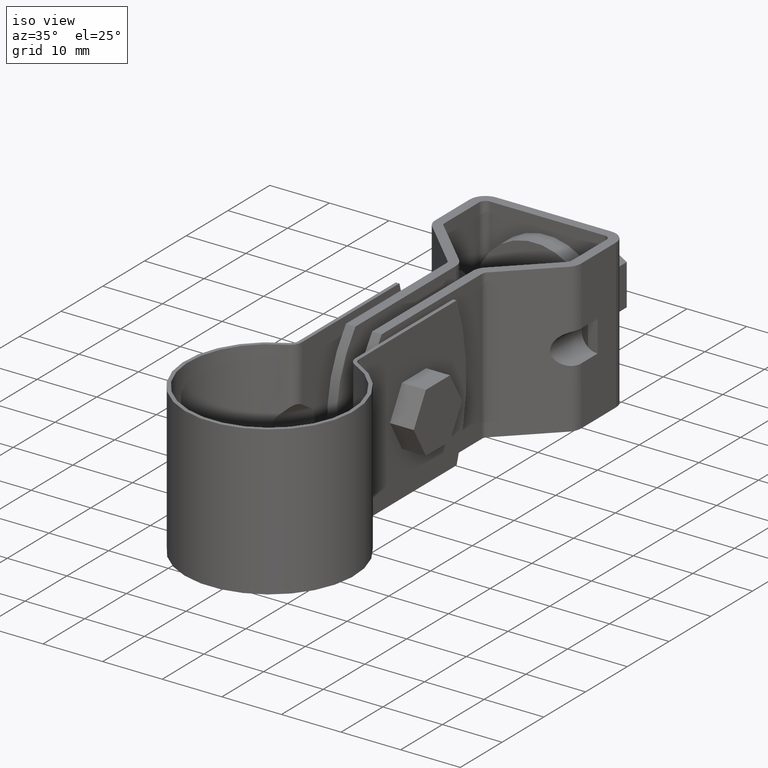
[diagram: clean part render]
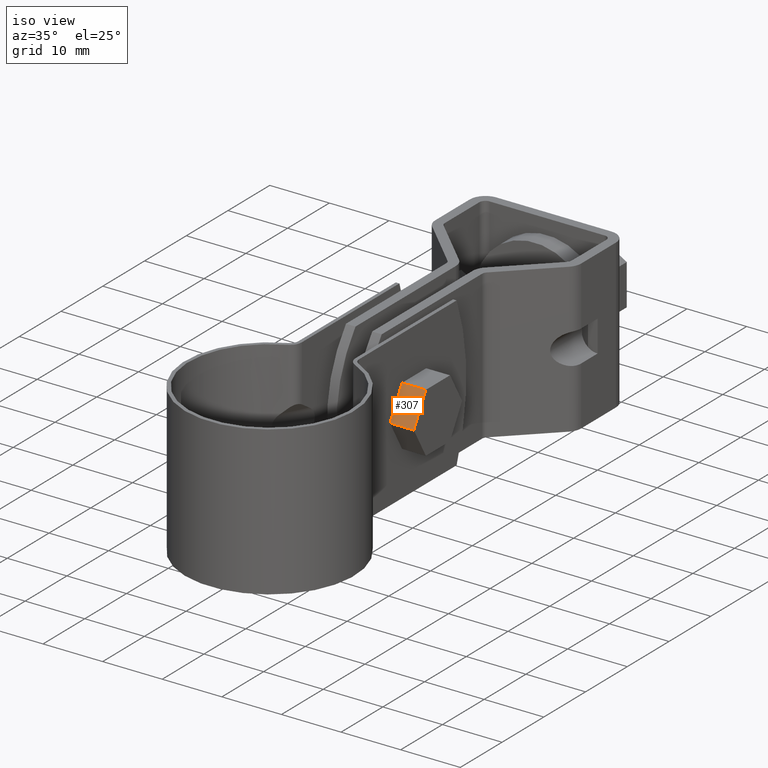
[diagram: same view with one face highlighted and labeled with its STEP entity id]
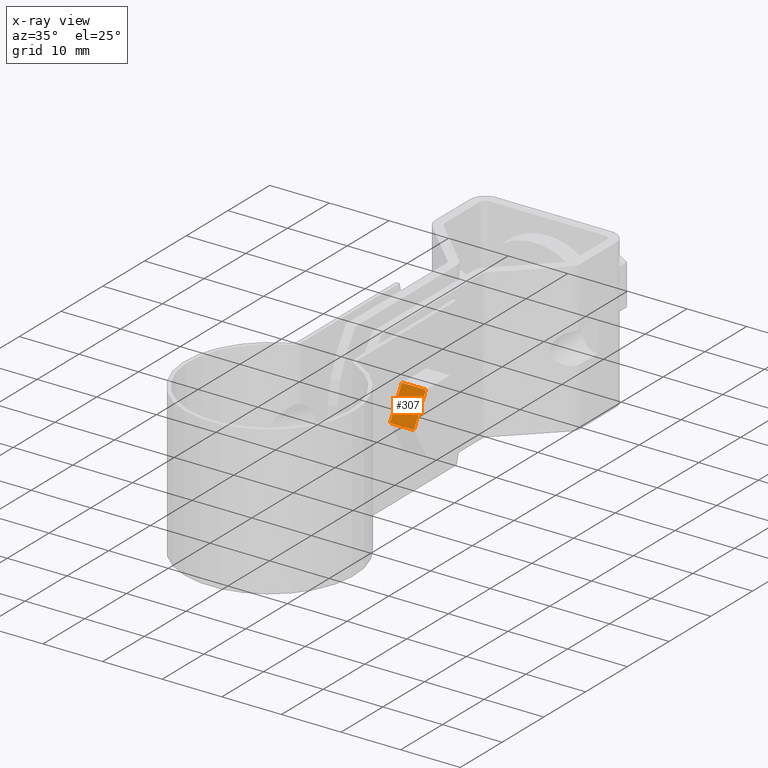
[diagram: x-ray of the same camera — body ghosted, the highlighted face saturated]
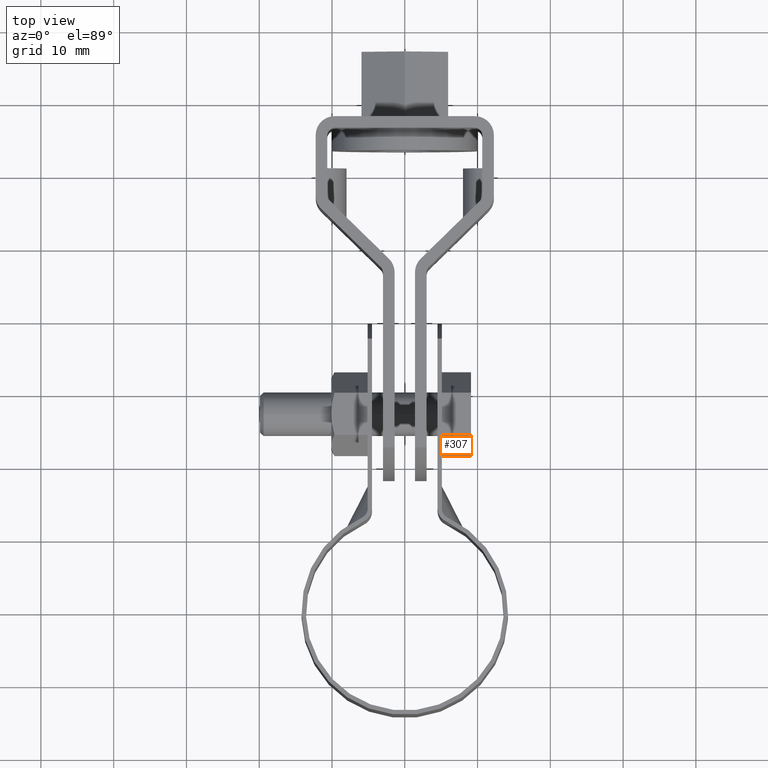
[diagram: same view with one face highlighted and labeled with its STEP entity id]
A machine part, iso view. The second image highlights one B-rep face of the part: STEP entity #307.
The next image is the same camera in x-ray: the body ghosted, the highlighted face saturated — about 0% of this face is hidden behind the body in this view.
A second angle (top view) of the same face is appended — the face is thin or edge-on in the first view.
In plain terms, the highlighted planar face has unit normal (0, 0.866, -0.5).
Its self-contained STEP definition (entity closure, byte-faithful):
#307 = ADVANCED_FACE( '', ( #479 ), #480, .F. );
#479 = FACE_OUTER_BOUND( '', #751, .T. );
#480 = PLANE( '', #752 );
#751 = EDGE_LOOP( '', ( #1260, #1261, #1262, #1263 ) );
#752 = AXIS2_PLACEMENT_3D( '', #1264, #1265, #1266 );
#1260 = ORIENTED_EDGE( '', *, *, #2024, .T. );
#1261 = ORIENTED_EDGE( '', *, *, #2040, .F. );
#1262 = ORIENTED_EDGE( '', *, *, #2038, .F. );
#1263 = ORIENTED_EDGE( '', *, *, #2041, .T. );
#1264 = CARTESIAN_POINT( '', ( 9.10000000000000, 24.4471880336820, 4.99999999999856 ) );
#1265 = DIRECTION( '', ( 5.25410797352018E-017, 0.866025403784439, -0.500000000000000 ) );
#1266 = DIRECTION( '', ( 3.03346065286324E-017, 0.500000000000000, 0.866025403784439 ) );
#2024 = EDGE_CURVE( '', #2404, #2402, #2405, .T. );
#2038 = EDGE_CURVE( '', #2427, #2429, #2430, .T. );
#2040 = EDGE_CURVE( '', #2429, #2402, #2432, .T. );
#2041 = EDGE_CURVE( '', #2427, #2404, #2433, .T. );
#2402 = VERTEX_POINT( '', #3047 );
#2404 = VERTEX_POINT( '', #3050 );
#2405 = LINE( '', #3051, #3052 );
#2427 = VERTEX_POINT( '', #3083 );
#2429 = VERTEX_POINT( '', #3086 );
#2430 = LINE( '', #3087, #3088 );
#2432 = LINE( '', #3091, #3092 );
#2433 = LINE( '', #3093, #3094 );
#3047 = CARTESIAN_POINT( '', ( 5.10000000000000, 21.5604366877347, -8.67361737988404E-016 ) );
#3050 = CARTESIAN_POINT( '', ( 5.10000000000000, 24.4471880336820, 4.99999999999856 ) );
#3051 = CARTESIAN_POINT( '', ( 5.10000000000000, 24.4471880336820, 4.99999999999856 ) );
#3052 = VECTOR( '', #3839, 999.999999999904 );
#3083 = CARTESIAN_POINT( '', ( 9.10000000000000, 24.4471880336820, 4.99999999999856 ) );
#3086 = CARTESIAN_POINT( '', ( 9.10000000000000, 21.5604366877347, -8.67361737988404E-016 ) );
#3087 = CARTESIAN_POINT( '', ( 9.10000000000000, 24.4471880336820, 4.99999999999856 ) );
#3088 = VECTOR( '', #3859, 999.999999999904 );
#3091 = CARTESIAN_POINT( '', ( 9.10000000000000, 21.5604366877347, -8.67361737988404E-016 ) );
#3092 = VECTOR( '', #3861, 1000.00000000019 );
#3093 = CARTESIAN_POINT( '', ( 9.10000000000000, 24.4471880336820, 4.99999999999856 ) );
#3094 = VECTOR( '', #3862, 1000.00000000019 );
#3839 = DIRECTION( '', ( -3.03346065286324E-017, -0.500000000000000, -0.866025403784439 ) );
#3859 = DIRECTION( '', ( -3.03346065286324E-017, -0.500000000000000, -0.866025403784439 ) );
#3861 = DIRECTION( '', ( -1.00000000000000, 6.06692130572647E-017, 0.000000000000000 ) );
#3862 = DIRECTION( '', ( -1.00000000000000, 6.06692130572647E-017, 0.000000000000000 ) );